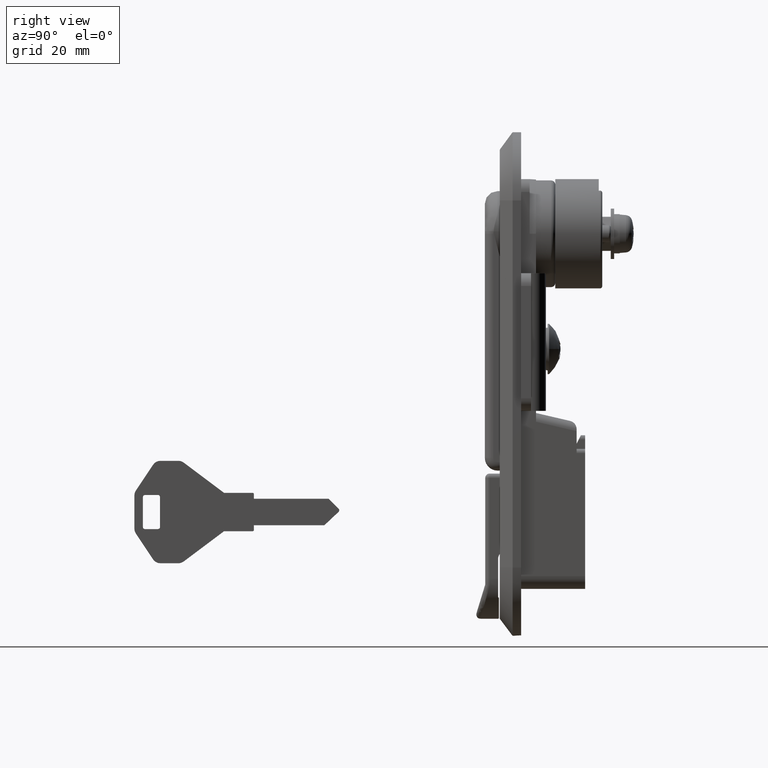
[diagram: clean part render]
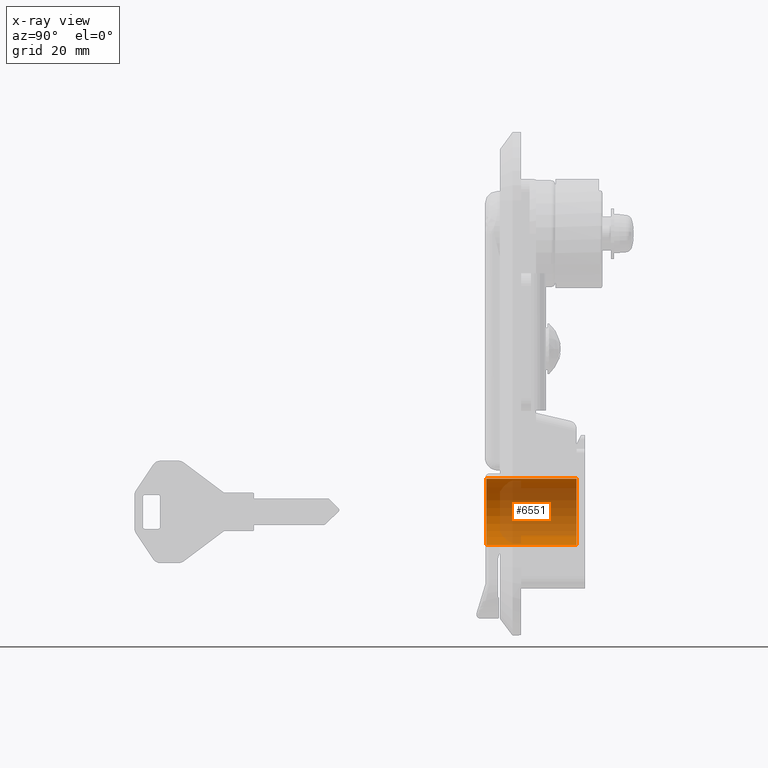
[diagram: x-ray — body ghosted, one internal face saturated and labeled with its STEP entity id]
A machine part, right view, then the same camera in x-ray: the body is ghosted and one INTERNAL B-rep face — a face not visible from any outside direction — is saturated and labeled: STEP entity #6551.
In plain terms, the highlighted cylindrical surface (edge-blend (fillet) strip) has radius 7.8 mm, axis along (0, -1, 0).
Its self-contained STEP definition (entity closure, byte-faithful):
#159 = DIRECTION ( 'NONE',  ( 0.0000000000000000000, 0.0000000000000000000, -1.000000000000000000 ) ) ;
#160 = DIRECTION ( 'NONE',  ( 1.000000000000000000, 0.0000000000000000000, 0.0000000000000000000 ) ) ;
#161 = CARTESIAN_POINT ( 'NONE',  ( -3.100000000000000100, 0.0000000000000000000, -65.19999999999998900 ) ) ;
#162 = AXIS2_PLACEMENT_3D ( 'NONE', #161, #160, #159 ) ;
#163 = CIRCLE ( 'NONE', #162, 7.800000000000001600 ) ;
#164 = CARTESIAN_POINT ( 'NONE',  ( -3.100000000000000100, 0.0000000000000000000, -57.39999999999999100 ) ) ;
#221 = CARTESIAN_POINT ( 'NONE',  ( -3.100000000000000100, 9.552245033349352600E-016, -73.00000000000000000 ) ) ;
#288 = DIRECTION ( 'NONE',  ( -1.000000000000000000, 0.0000000000000000000, 0.0000000000000000000 ) ) ;
#289 = VECTOR ( 'NONE', #288, 1000.000000000000000 ) ;
#290 = CARTESIAN_POINT ( 'NONE',  ( 996.6000000000000200, 0.0000000000000000000, -57.39999999999999100 ) ) ;
#291 = LINE ( 'NONE', #290, #289 ) ;
#292 = DIRECTION ( 'NONE',  ( -1.000000000000000000, 0.0000000000000000000, 0.0000000000000000000 ) ) ;
#293 = VECTOR ( 'NONE', #292, 1000.000000000000000 ) ;
#294 = CARTESIAN_POINT ( 'NONE',  ( 996.6000000000000200, 9.552245033349354600E-016, -73.00000000000000000 ) ) ;
#295 = LINE ( 'NONE', #294, #293 ) ;
#296 = CARTESIAN_POINT ( 'NONE',  ( 18.00000000000000000, 9.552245033349352600E-016, -73.00000000000000000 ) ) ;
#297 = CARTESIAN_POINT ( 'NONE',  ( 18.00000000000000000, 0.0000000000000000000, -57.39999999999999100 ) ) ;
#298 = DIRECTION ( 'NONE',  ( 0.0000000000000000000, 0.0000000000000000000, -1.000000000000000000 ) ) ;
#299 = DIRECTION ( 'NONE',  ( -1.000000000000000000, 0.0000000000000000000, 0.0000000000000000000 ) ) ;
#300 = AXIS2_PLACEMENT_3D ( 'NONE', #306, #299, #298 ) ;
#301 = CIRCLE ( 'NONE', #300, 7.800000000000001600 ) ;
#302 = DIRECTION ( 'NONE',  ( 0.0000000000000000000, 0.0000000000000000000, 1.000000000000000000 ) ) ;
#303 = DIRECTION ( 'NONE',  ( -1.000000000000000000, 0.0000000000000000000, 0.0000000000000000000 ) ) ;
#304 = AXIS2_PLACEMENT_3D ( 'NONE', #307, #303, #302 ) ;
#305 = CYLINDRICAL_SURFACE ( 'NONE', #304, 7.800000000000001600 ) ;
#306 = CARTESIAN_POINT ( 'NONE',  ( 18.00000000000000000, 0.0000000000000000000, -65.19999999999998900 ) ) ;
#307 = CARTESIAN_POINT ( 'NONE',  ( 996.6000000000000200, 0.0000000000000000000, -65.19999999999998900 ) ) ;
#313 = FACE_OUTER_BOUND ( 'NONE', #6552, .T. ) ;
#6488 = VERTEX_POINT ( 'NONE', #164 ) ;
#6490 = EDGE_CURVE ( 'NONE', #6491, #6488, #163, .T. ) ;
#6491 = VERTEX_POINT ( 'NONE', #221 ) ;
#6551 = ADVANCED_FACE ( 'NONE', ( #313 ), #305, .T. ) ;
#6552 = EDGE_LOOP ( 'NONE', ( #6553, #6557, #6559, #6560 ) ) ;
#6553 = ORIENTED_EDGE ( 'NONE', *, *, #6554, .T. ) ;
#6554 = EDGE_CURVE ( 'NONE', #6555, #6556, #301, .T. ) ;
#6555 = VERTEX_POINT ( 'NONE', #297 ) ;
#6556 = VERTEX_POINT ( 'NONE', #296 ) ;
#6557 = ORIENTED_EDGE ( 'NONE', *, *, #6558, .T. ) ;
#6558 = EDGE_CURVE ( 'NONE', #6556, #6491, #295, .T. ) ;
#6559 = ORIENTED_EDGE ( 'NONE', *, *, #6490, .T. ) ;
#6560 = ORIENTED_EDGE ( 'NONE', *, *, #6561, .F. ) ;
#6561 = EDGE_CURVE ( 'NONE', #6555, #6488, #291, .T. ) ;